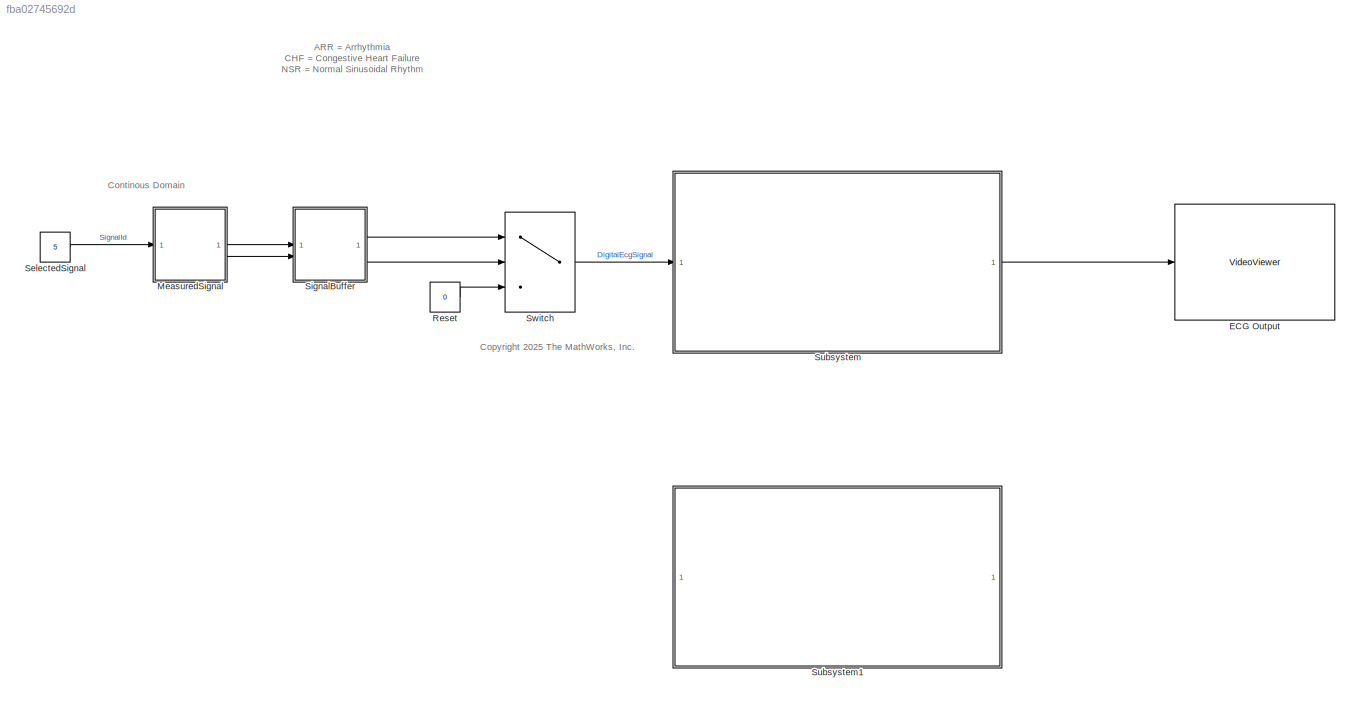
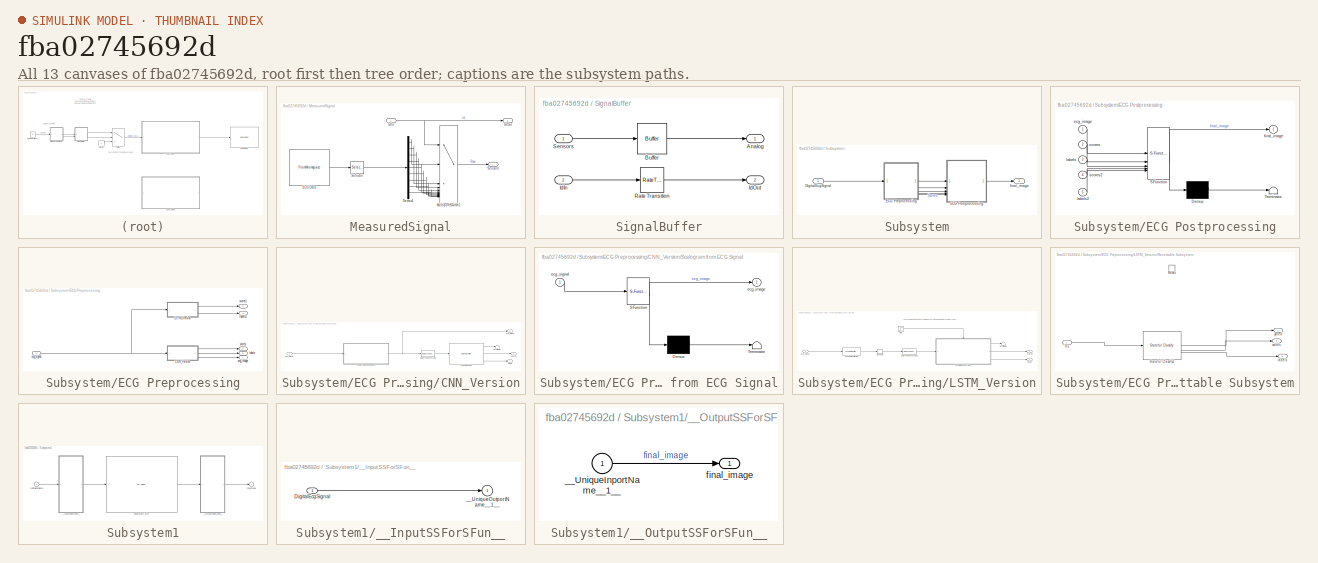
[diagram: thumbnail index - all 13 canvases of the model, root first then tree order]
MODEL slx_fba02745692d
KIND model
CONFIG AbsTol = auto
CONFIG EnableMultiTasking = off
CONFIG FixedStep = 1/128
CONFIG InitFcn = load('ECG_Data_split.mat')\necg_stream = timetable(testData','TimeStep',seconds(1/128));\nclassNames=["ARR","CHF","NSR"];\nclassNamesL=["arr","chf","nsr"];\npath = ['CodeGen','/Subsystem/ECG Preprocessing/LSTM_Version/Resettable Subsystem/Stateful Classify1/'];\nset_param(path,'InputDataFormats',"{'sequenceinput', 'CT'}");
CONFIG MaxStep = auto
CONFIG MinStep = auto
CONFIG RelTol = 1e-3
CONFIG SampleTimeConstraint = Unconstrained
CONFIG SolverName = FixedStepDiscrete
CONFIG StartTime = 0
CONFIG StopTime = 511
BLOCK [VideoViewer] ECG Output
  FigPos = [-1063.66666666667 570.666666666667 249.333333333333 221.333333333333]
  ScopeSpecificationString = vipscopes.VideoViewerScopeCfg('CurrentConfiguration', extmgr.ConfigurationSet(extmgr.Configuration('Core','General UI',true),extmgr.Configuration('Core','Source UI',true),extmgr.Configuration('Sources','WiredSimulink',true,'LockSynchronous',true),extmgr.Configuration('Sources','File',false),extmgr.Configuration('Sources','Workspace',false),extmgr.Configuration('Sources','Streaming',false),extmgr.C...<+1561ch>
  colormapValue = gray(256)
BLOCK [SubSystem] MeasuredSignal
  VariantControl = testMixed
BLOCK [Demux] MeasuredSignal/Demux1
  Outputs = 9
BLOCK [FromWorkspace] MeasuredSignal/ECG Data
  SampleTime = 1/128
  VariableName = ecg_stream
BLOCK [Inport] MeasuredSignal/IdIn
BLOCK [Outport] MeasuredSignal/IdOut
  Port = 2
BLOCK [MultiPortSwitch] MeasuredSignal/MultiportSwitch1
  DataPortForDefault = Additional data port
  DiagnosticForDefault = None
  InputSameDT = off
  Inputs = 9
  SaturateOnIntegerOverflow = off
BLOCK [Selector] MeasuredSignal/Selector
  IndexOptions = Index vector (dialog)
  Indices = [3 12 27 31 36 38 43 48 49]
  InputPortWidth = 49
  OutputSizes = 1
BLOCK [Outport] MeasuredSignal/Sensors
BLOCK [Constant] Reset
  SampleTime = -1
  Value = 0
BLOCK [Constant] SelectedSignal
  SampleTime = -1
  Value = 5
BLOCK [SubSystem] SignalBuffer
BLOCK [Outport] SignalBuffer/Analog
BLOCK [Buffer] SignalBuffer/Buffer
  N = 1024
  OutputFrames = off
  V = 512
BLOCK [Inport] SignalBuffer/IdIn
  Port = 2
BLOCK [Outport] SignalBuffer/IdOut
  Port = 2
BLOCK [RateTransition] SignalBuffer/Rate Transition
  OutPortSampleTime = 4
BLOCK [Inport] SignalBuffer/Sensors
BLOCK [SubSystem] Subsystem
  TreatAsAtomicUnit = on
BLOCK [Inport] Subsystem/DigitalEcgSignal
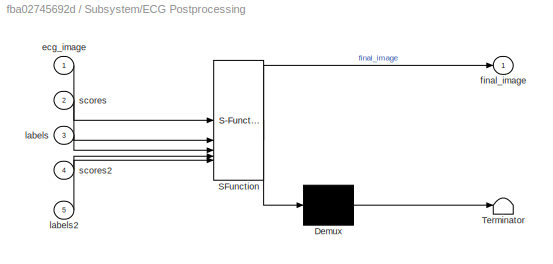
BLOCK [SubSystem] Subsystem/ECG Postprocessing
  ErrorFcn = Stateflow.Translate.translate
  PermitHierarchicalResolution = ExplicitOnly
  SFBlockType = MATLAB Function
  TreatAsAtomicUnit = on
BLOCK [Demux] Subsystem/ECG Postprocessing/ Demux 
  Outputs = 1
BLOCK [S-Function] Subsystem/ECG Postprocessing/ SFunction 
  EnableBusSupport = on
  FunctionName = sf_sfun
  PortCounts = [5 2]
  SFcnIsStateOwnerBlock = off
  SFunctionDeploymentMode = off
  Tag = Stateflow S-Function 3
BLOCK [Terminator] Subsystem/ECG Postprocessing/ Terminator 
BLOCK [Inport] Subsystem/ECG Postprocessing/ecg_image
BLOCK [Outport] Subsystem/ECG Postprocessing/final_image
BLOCK [Inport] Subsystem/ECG Postprocessing/labels
  Port = 3
BLOCK [Inport] Subsystem/ECG Postprocessing/labels2
  Port = 5
BLOCK [Inport] Subsystem/ECG Postprocessing/scores
  Port = 2
BLOCK [Inport] Subsystem/ECG Postprocessing/scores2
  Port = 4
BLOCK [SubSystem] Subsystem/ECG Preprocessing
  TreatAsAtomicUnit = on
BLOCK [SubSystem] Subsystem/ECG Preprocessing/CNN_Version
  RTWSystemCode = Nonreusable function
  TreatAsAtomicUnit = on
  VariantControl = false
BLOCK [DataTypeConversion] Subsystem/ECG Preprocessing/CNN_Version/Data Type Conversion
  OutDataTypeStr = single
  RndMeth = Floor
  SaturateOnIntegerOverflow = off
BLOCK [Reference] Subsystem/ECG Preprocessing/CNN_Version/Pretrained CNN   REF=deeplib/Image Classifier
  SourceBlock = deeplib/Image Classifier
  SourceType = Image Classifier
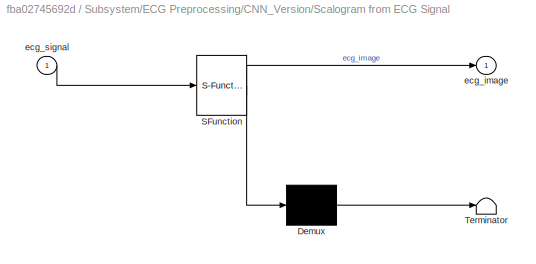
BLOCK [SubSystem] Subsystem/ECG Preprocessing/CNN_Version/Scalogram from ECG Signal
  ErrorFcn = Stateflow.Translate.translate
  PermitHierarchicalResolution = ExplicitOnly
  SFBlockType = MATLAB Function
  TreatAsAtomicUnit = on
BLOCK [Demux] Subsystem/ECG Preprocessing/CNN_Version/Scalogram from ECG Signal/ Demux 
  Outputs = 1
BLOCK [S-Function] Subsystem/ECG Preprocessing/CNN_Version/Scalogram from ECG Signal/ SFunction 
  EnableBusSupport = on
  FunctionName = sf_sfun
  PortCounts = [1 2]
  SFcnIsStateOwnerBlock = off
  SFunctionDeploymentMode = off
  Tag = Stateflow S-Function 5
BLOCK [Terminator] Subsystem/ECG Preprocessing/CNN_Version/Scalogram from ECG Signal/ Terminator 
BLOCK [Outport] Subsystem/ECG Preprocessing/CNN_Version/Scalogram from ECG Signal/ecg_image
BLOCK [Inport] Subsystem/ECG Preprocessing/CNN_Version/Scalogram from ECG Signal/ecg_signal
BLOCK [Terminator] Subsystem/ECG Preprocessing/CNN_Version/Terminator
BLOCK [Outport] Subsystem/ECG Preprocessing/CNN_Version/ecg_image
  Port = 3
BLOCK [Inport] Subsystem/ECG Preprocessing/CNN_Version/ecg_signal
BLOCK [Outport] Subsystem/ECG Preprocessing/CNN_Version/labels
  Port = 2
BLOCK [Outport] Subsystem/ECG Preprocessing/CNN_Version/scores
BLOCK [SubSystem] Subsystem/ECG Preprocessing/LSTM_Version
  RTWSystemCode = Nonreusable function
  TreatAsAtomicUnit = on
  VariantControl = true
BLOCK [DataTypeConversion] Subsystem/ECG Preprocessing/LSTM_Version/Data Type Conversion1
  OutDataTypeStr = single
  RndMeth = Floor
  SaturateOnIntegerOverflow = off
BLOCK [SubSystem] Subsystem/ECG Preprocessing/LSTM_Version/Resettable Subsystem
  TreatAsAtomicUnit = on
BLOCK [Inport] Subsystem/ECG Preprocessing/LSTM_Version/Resettable Subsystem/In1
BLOCK [ResetPort] Subsystem/ECG Preprocessing/LSTM_Version/Resettable Subsystem/Reset
  DisableCoverage = on
BLOCK [Reference] Subsystem/ECG Preprocessing/LSTM_Version/Resettable Subsystem/Stateful Classify1  REF=deeplib/Stateful Classify
  SourceBlock = deeplib/Stateful Classify
  SourceType = Stateful Classify
BLOCK [Outport] Subsystem/ECG Preprocessing/LSTM_Version/Resettable Subsystem/labels
  Port = 3
BLOCK [Outport] Subsystem/ECG Preprocessing/LSTM_Version/Resettable Subsystem/scores
  Port = 2
BLOCK [Outport] Subsystem/ECG Preprocessing/LSTM_Version/Resettable Subsystem/ypred
BLOCK [Reshape] Subsystem/ECG Preprocessing/LSTM_Version/Reshape
BLOCK [Step] Subsystem/ECG Preprocessing/LSTM_Version/Step
  SampleTime = 4
  Time = 0.1
BLOCK [Terminator] Subsystem/ECG Preprocessing/LSTM_Version/Terminator
BLOCK [Reference] Subsystem/ECG Preprocessing/LSTM_Version/Wavelet Scattering  REF=dspfeatures/Wavelet Scattering
  SourceBlock = dspfeatures/Wavelet Scattering
  SourceType = waveletscattering
BLOCK [Inport] Subsystem/ECG Preprocessing/LSTM_Version/ecg_signal
BLOCK [Outport] Subsystem/ECG Preprocessing/LSTM_Version/labels
  Port = 2
BLOCK [Outport] Subsystem/ECG Preprocessing/LSTM_Version/scores
BLOCK [Outport] Subsystem/ECG Preprocessing/ecg_image
BLOCK [Inport] Subsystem/ECG Preprocessing/ecg_signal
BLOCK [Outport] Subsystem/ECG Preprocessing/labels
  Port = 5
BLOCK [Outport] Subsystem/ECG Preprocessing/labels1
  Port = 3
BLOCK [Outport] Subsystem/ECG Preprocessing/scores
  Port = 4
BLOCK [Outport] Subsystem/ECG Preprocessing/scores1
  Port = 2
BLOCK [Outport] Subsystem/final_image
BLOCK [SubSystem] Subsystem1
  Commented = through
  DialogController = pil_create_dialog
  LoadFcn = try\n   if ~strcmp(rtw.pil.getPILVersion, '24.2 (R2024b)_15')\n      set_param(gcb, 'DialogController', '');\n      set_param(gcb, 'DialogControllerArgs', '');\n   end\ncatch e\n      set_param(gcb, 'DialogController', '');\n      set_param(gcb, 'DialogControllerArgs', '');\nend
BLOCK [Inport] Subsystem1/DigitalEcgSignal
BLOCK [Reference] Subsystem1/Subsystem_sfcn  REF=pil_lib/PIL Block
  SourceBlock = pil_lib/PIL Block
  SourceType = XILBlock
BLOCK [SubSystem] Subsystem1/__InputSSForSFun__
  PermitHierarchicalResolution = ExplicitOnly
BLOCK [Inport] Subsystem1/__InputSSForSFun__/DigitalEcgSignal
BLOCK [Outport] Subsystem1/__InputSSForSFun__/__UniqueOutportName__1__
BLOCK [SubSystem] Subsystem1/__OutputSSForSFun__
  PermitHierarchicalResolution = ExplicitOnly
BLOCK [Inport] Subsystem1/__OutputSSForSFun__/__UniqueInportName__1__
BLOCK [Outport] Subsystem1/__OutputSSForSFun__/final_image
BLOCK [Outport] Subsystem1/final_image
BLOCK [Switch] Switch
  Criteria = u2 ~= 0
  InputSameDT = off
  OutDataTypeStr = Inherit: Inherit via back propagation
  SaturateOnIntegerOverflow = off
ANNOTATION (root): ARR = Arrhythmia CHF = Congestive Heart Failure NSR = Normal Sinusoidal Rhythm
ANNOTATION (root): Continous Domain
ANNOTATION (root): <copyright redacted>
ANNOTATION Subsystem/ECG Preprocessing/LSTM_Version: The LSTM is embedded in a resettable subsystem. This allows to reset the LSTM when the signal is recorded from different individuals.
LINE MeasuredSignal/Demux1:1 -> MeasuredSignal/MultiportSwitch1:2
LINE MeasuredSignal/Demux1:2 -> MeasuredSignal/MultiportSwitch1:3
LINE MeasuredSignal/Demux1:3 -> MeasuredSignal/MultiportSwitch1:4
LINE MeasuredSignal/Demux1:4 -> MeasuredSignal/MultiportSwitch1:5
LINE MeasuredSignal/Demux1:5 -> MeasuredSignal/MultiportSwitch1:6
LINE MeasuredSignal/Demux1:6 -> MeasuredSignal/MultiportSwitch1:7
LINE MeasuredSignal/Demux1:7 -> MeasuredSignal/MultiportSwitch1:8
LINE MeasuredSignal/Demux1:8 -> MeasuredSignal/MultiportSwitch1:9
NET MeasuredSignal/Demux1:9 -> MeasuredSignal/MultiportSwitch1:10, MeasuredSignal/MultiportSwitch1:11
LINE MeasuredSignal/ECG Data:1 -> MeasuredSignal/Selector:1
NET MeasuredSignal/IdIn:1 -> MeasuredSignal/IdOut:1, MeasuredSignal/MultiportSwitch1:1
LINE MeasuredSignal/MultiportSwitch1:1 -> MeasuredSignal/Sensors:1
LINE MeasuredSignal/Selector:1 -> MeasuredSignal/Demux1:1
LINE MeasuredSignal:1 -> SignalBuffer:1
LINE MeasuredSignal:2 -> SignalBuffer:2
LINE Reset:1 -> Switch:3
LINE SelectedSignal:1 -> MeasuredSignal:1
LINE SignalBuffer/Buffer:1 -> SignalBuffer/Analog:1
LINE SignalBuffer/IdIn:1 -> SignalBuffer/Rate Transition:1
LINE SignalBuffer/Rate Transition:1 -> SignalBuffer/IdOut:1
LINE SignalBuffer/Sensors:1 -> SignalBuffer/Buffer:1
LINE SignalBuffer:1 -> Switch:1
LINE SignalBuffer:2 -> Switch:2
LINE Subsystem/DigitalEcgSignal:1 -> Subsystem/ECG Preprocessing:1
LINE Subsystem/ECG Postprocessing:1 -> Subsystem/final_image:1
LINE Subsystem/ECG Preprocessing/CNN_Version/Data Type Conversion:1 -> Subsystem/ECG Preprocessing/CNN_Version/Pretrained CNN :1
LINE Subsystem/ECG Preprocessing/CNN_Version/Pretrained CNN :1 -> Subsystem/ECG Preprocessing/CNN_Version/Terminator:1
LINE Subsystem/ECG Preprocessing/CNN_Version/Pretrained CNN :2 -> Subsystem/ECG Preprocessing/CNN_Version/scores:1
LINE Subsystem/ECG Preprocessing/CNN_Version/Pretrained CNN :3 -> Subsystem/ECG Preprocessing/CNN_Version/labels:1
NET Subsystem/ECG Preprocessing/CNN_Version/Scalogram from ECG Signal:1 -> Subsystem/ECG Preprocessing/CNN_Version/Data Type Conversion:1, Subsystem/ECG Preprocessing/CNN_Version/ecg_image:1
LINE Subsystem/ECG Preprocessing/CNN_Version/ecg_signal:1 -> Subsystem/ECG Preprocessing/CNN_Version/Scalogram from ECG Signal:1
LINE Subsystem/ECG Preprocessing/CNN_Version:1 -> Subsystem/ECG Preprocessing/scores:1
LINE Subsystem/ECG Preprocessing/CNN_Version:2 -> Subsystem/ECG Preprocessing/labels:1
LINE Subsystem/ECG Preprocessing/CNN_Version:3 -> Subsystem/ECG Preprocessing/ecg_image:1
LINE Subsystem/ECG Preprocessing/LSTM_Version/Data Type Conversion1:1 -> Subsystem/ECG Preprocessing/LSTM_Version/Resettable Subsystem:1
LINE Subsystem/ECG Preprocessing/LSTM_Version/Resettable Subsystem/In1:1 -> Subsystem/ECG Preprocessing/LSTM_Version/Resettable Subsystem/Stateful Classify1:1
LINE Subsystem/ECG Preprocessing/LSTM_Version/Resettable Subsystem/Stateful Classify1:1 -> Subsystem/ECG Preprocessing/LSTM_Version/Resettable Subsystem/ypred:1
LINE Subsystem/ECG Preprocessing/LSTM_Version/Resettable Subsystem/Stateful Classify1:2 -> Subsystem/ECG Preprocessing/LSTM_Version/Resettable Subsystem/scores:1
LINE Subsystem/ECG Preprocessing/LSTM_Version/Resettable Subsystem/Stateful Classify1:3 -> Subsystem/ECG Preprocessing/LSTM_Version/Resettable Subsystem/labels:1
LINE Subsystem/ECG Preprocessing/LSTM_Version/Resettable Subsystem:1 -> Subsystem/ECG Preprocessing/LSTM_Version/Terminator:1
LINE Subsystem/ECG Preprocessing/LSTM_Version/Resettable Subsystem:2 -> Subsystem/ECG Preprocessing/LSTM_Version/scores:1
LINE Subsystem/ECG Preprocessing/LSTM_Version/Resettable Subsystem:3 -> Subsystem/ECG Preprocessing/LSTM_Version/labels:1
LINE Subsystem/ECG Preprocessing/LSTM_Version/Reshape:1 -> Subsystem/ECG Preprocessing/LSTM_Version/Data Type Conversion1:1
LINE Subsystem/ECG Preprocessing/LSTM_Version/Step:1 -> Subsystem/ECG Preprocessing/LSTM_Version/Resettable Subsystem:Reset
LINE Subsystem/ECG Preprocessing/LSTM_Version/Wavelet Scattering:1 -> Subsystem/ECG Preprocessing/LSTM_Version/Reshape:1
LINE Subsystem/ECG Preprocessing/LSTM_Version/ecg_signal:1 -> Subsystem/ECG Preprocessing/LSTM_Version/Wavelet Scattering:1
LINE Subsystem/ECG Preprocessing/LSTM_Version:1 -> Subsystem/ECG Preprocessing/scores1:1
LINE Subsystem/ECG Preprocessing/LSTM_Version:2 -> Subsystem/ECG Preprocessing/labels1:1
NET Subsystem/ECG Preprocessing/ecg_signal:1 -> Subsystem/ECG Preprocessing/CNN_Version:1, Subsystem/ECG Preprocessing/LSTM_Version:1
LINE Subsystem/ECG Preprocessing:1 -> Subsystem/ECG Postprocessing:1
LINE Subsystem/ECG Preprocessing:2 -> Subsystem/ECG Postprocessing:2
LINE Subsystem/ECG Preprocessing:3 -> Subsystem/ECG Postprocessing:3
LINE Subsystem/ECG Preprocessing:4 -> Subsystem/ECG Postprocessing:4
LINE Subsystem/ECG Preprocessing:5 -> Subsystem/ECG Postprocessing:5
LINE Subsystem1/DigitalEcgSignal:1 -> Subsystem1/__InputSSForSFun__:1
LINE Subsystem1/Subsystem_sfcn:1 -> Subsystem1/__OutputSSForSFun__:1
LINE Subsystem1/__InputSSForSFun__/DigitalEcgSignal:1 -> Subsystem1/__InputSSForSFun__/__UniqueOutportName__1__:1
LINE Subsystem1/__InputSSForSFun__:1 -> Subsystem1/Subsystem_sfcn:1
LINE Subsystem1/__OutputSSForSFun__/__UniqueInportName__1__:1 -> Subsystem1/__OutputSSForSFun__/final_image:1
LINE Subsystem1/__OutputSSForSFun__:1 -> Subsystem1/final_image:1
LINE Subsystem:1 -> ECG Output:1
LINE Switch:1 -> Subsystem:1
note: NET lines group one-source signal fan-out (src -> all destinations, sorted); 1:1 wires keep LINE
CHART Subsystem/ECG Postprocessing states=1 transitions=1
  STATE_LABEL 'eML_blk_kernel()'
  STATE_LABEL 'SCRIPT:\nfunction final_image = ECGPostprocessing(ecg_image, scores, labels, scores2, labels2)\n    \n    final_image = label_prob_image2(ecg_image, scores, labels, scores2, labels2);\n\nend\n'
CHART Subsystem/ECG Preprocessing/CNN_Version/Scalogram from ECG Signal states=1 transitions=1
  STATE_LABEL 'eML_blk_kernel()'
  STATE_LABEL 'SCRIPT:\nfunction ecg_image  = ScalogramFromECG(ecg_signal)\n    \n    ecg_image = ecg_to_scalogram(ecg_signal);  \n\nend\n\n'
CHART  states=0 transitions=0
CHART  states=0 transitions=0
